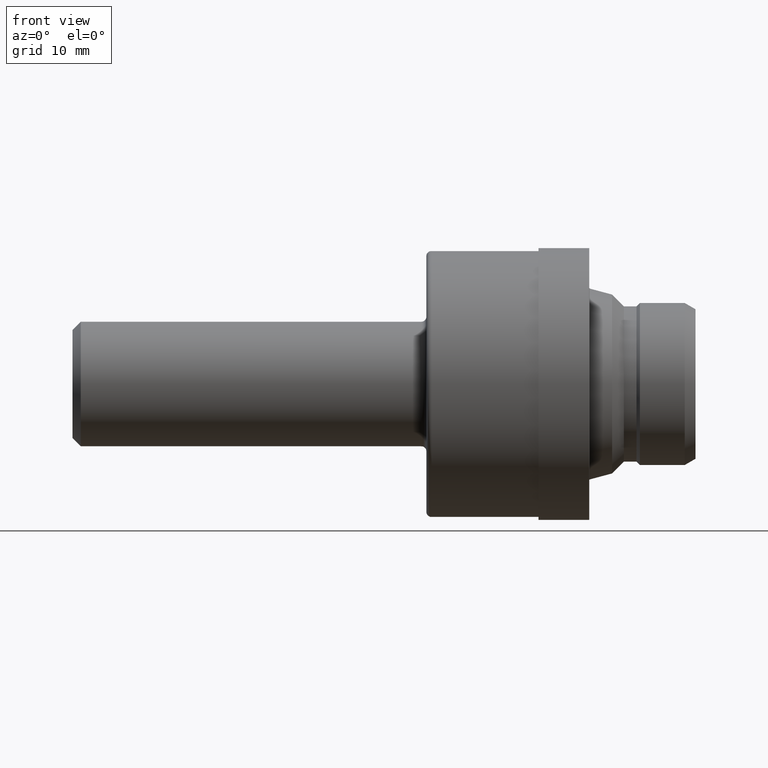
[diagram: clean part render]
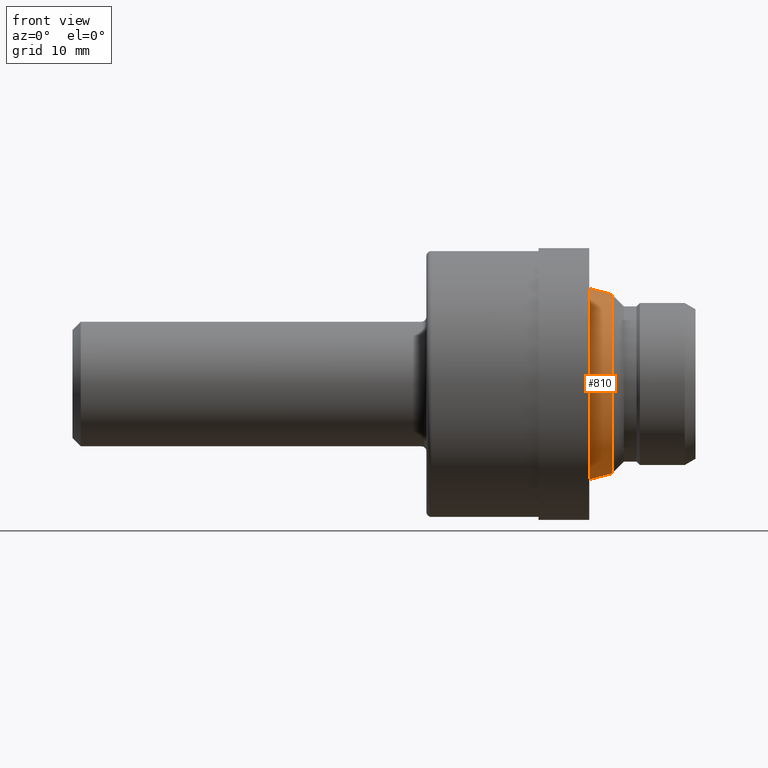
[diagram: same view with one face highlighted and labeled with its STEP entity id]
A machine part, front view. The second image highlights one B-rep face of the part: STEP entity #810.
In plain terms, the highlighted conical surface has half-angle 15 deg.
Its self-contained STEP definition (entity closure, byte-faithful):
#6 = VERTEX_POINT ( 'NONE', #563 ) ;
#18 = DIRECTION ( 'NONE',  ( -0.9659258262890682012, 0.0000000000000000000, 0.2588190451025214611 ) ) ;
#65 = DIRECTION ( 'NONE',  ( -1.000000000000000000, -0.0000000000000000000, -0.0000000000000000000 ) ) ;
#68 = VERTEX_POINT ( 'NONE', #676 ) ;
#79 = CONICAL_SURFACE ( 'NONE', #230, 0.5382730114445050118, 0.2617993877991501295 ) ;
#91 = VERTEX_POINT ( 'NONE', #371 ) ;
#143 = ORIENTED_EDGE ( 'NONE', *, *, #441, .F. ) ;
#180 = ORIENTED_EDGE ( 'NONE', *, *, #314, .F. ) ;
#183 = VECTOR ( 'NONE', #334, 39.37007874015747433 ) ;
#192 = AXIS2_PLACEMENT_3D ( 'NONE', #350, #830, #449 ) ;
#202 = ORIENTED_EDGE ( 'NONE', *, *, #480, .T. ) ;
#230 = AXIS2_PLACEMENT_3D ( 'NONE', #283, #65, #532 ) ;
#263 = CARTESIAN_POINT ( 'NONE',  ( 3.248000000000000220, 0.0000000000000000000, 0.5382730114445050118 ) ) ;
#280 = CIRCLE ( 'NONE', #192, 0.5382730114445050118 ) ;
#283 = CARTESIAN_POINT ( 'NONE',  ( 3.248000000000000220, 0.0000000000000000000, 0.0000000000000000000 ) ) ;
#306 = CIRCLE ( 'NONE', #815, 0.5737605087126742553 ) ;
#314 = EDGE_CURVE ( 'NONE', #402, #6, #365, .T. ) ;
#315 = CARTESIAN_POINT ( 'NONE',  ( 3.248000000000000220, 6.591943205329196732E-17, -0.5382730114445050118 ) ) ;
#334 = DIRECTION ( 'NONE',  ( -0.9659258262890682012, 3.169619151431773569E-17, -0.2588190451025214611 ) ) ;
#350 = CARTESIAN_POINT ( 'NONE',  ( 3.248000000000000220, 0.0000000000000000000, 0.0000000000000000000 ) ) ;
#365 = LINE ( 'NONE', #315, #183 ) ;
#371 = CARTESIAN_POINT ( 'NONE',  ( 3.248000000000000220, 0.0000000000000000000, 0.5382730114445050118 ) ) ;
#402 = VERTEX_POINT ( 'NONE', #497 ) ;
#441 = EDGE_CURVE ( 'NONE', #6, #68, #306, .T. ) ;
#444 = DIRECTION ( 'NONE',  ( 0.0000000000000000000, 0.0000000000000000000, 1.000000000000000000 ) ) ;
#449 = DIRECTION ( 'NONE',  ( 0.0000000000000000000, 0.0000000000000000000, 1.000000000000000000 ) ) ;
#452 = VECTOR ( 'NONE', #18, 39.37007874015747433 ) ;
#480 = EDGE_CURVE ( 'NONE', #402, #91, #280, .T. ) ;
#481 = FACE_OUTER_BOUND ( 'NONE', #807, .T. ) ;
#497 = CARTESIAN_POINT ( 'NONE',  ( 3.248000000000000220, 6.591943205329197965E-17, -0.5382730114445050118 ) ) ;
#532 = DIRECTION ( 'NONE',  ( 0.0000000000000000000, 0.0000000000000000000, 1.000000000000000000 ) ) ;
#563 = CARTESIAN_POINT ( 'NONE',  ( 3.115558857161731421, 7.026539704721336107E-17, -0.5737605087126742553 ) ) ;
#614 = CARTESIAN_POINT ( 'NONE',  ( 3.115558857161731421, 0.0000000000000000000, 0.0000000000000000000 ) ) ;
#632 = DIRECTION ( 'NONE',  ( -1.000000000000000000, -0.0000000000000000000, -0.0000000000000000000 ) ) ;
#636 = LINE ( 'NONE', #263, #452 ) ;
#654 = ORIENTED_EDGE ( 'NONE', *, *, #659, .T. ) ;
#659 = EDGE_CURVE ( 'NONE', #91, #68, #636, .T. ) ;
#676 = CARTESIAN_POINT ( 'NONE',  ( 3.115558857161731421, 0.0000000000000000000, 0.5737605087126742553 ) ) ;
#807 = EDGE_LOOP ( 'NONE', ( #180, #202, #654, #143 ) ) ;
#810 = ADVANCED_FACE ( 'NONE', ( #481 ), #79, .T. ) ;
#815 = AXIS2_PLACEMENT_3D ( 'NONE', #614, #632, #444 ) ;
#830 = DIRECTION ( 'NONE',  ( -1.000000000000000000, -0.0000000000000000000, -0.0000000000000000000 ) ) ;